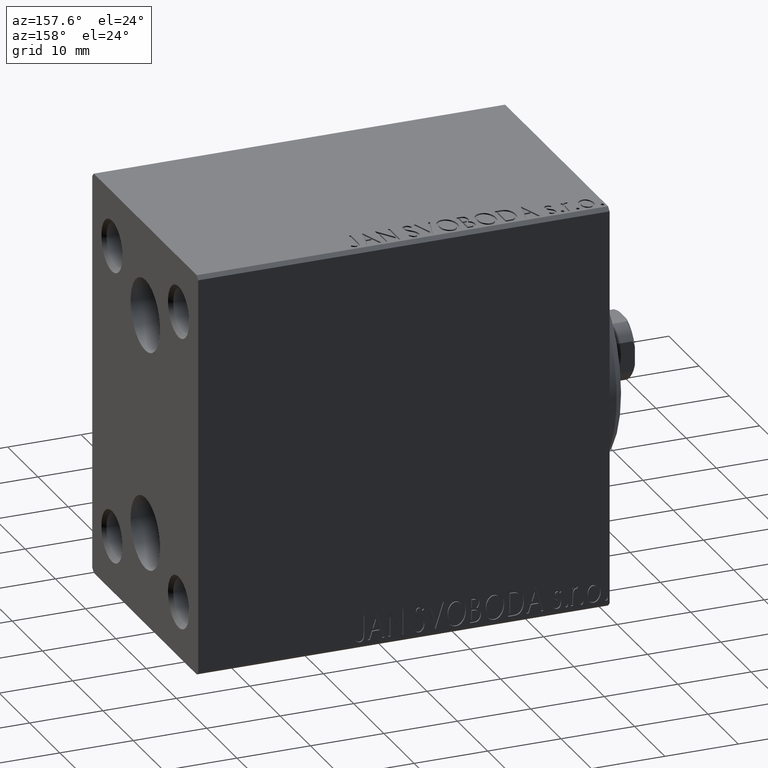
[diagram: clean part render]
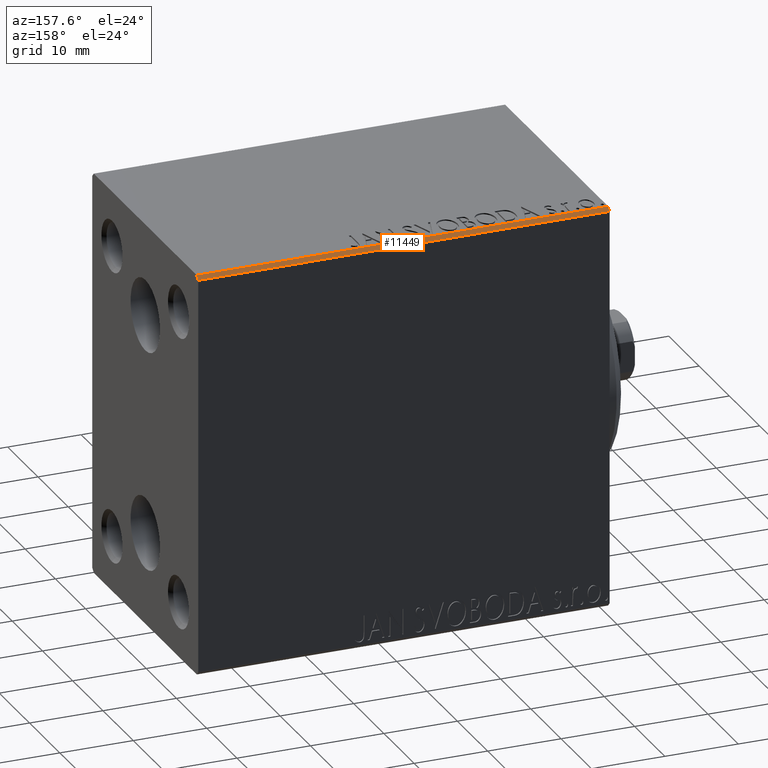
[diagram: same view with one face highlighted and labeled with its STEP entity id]
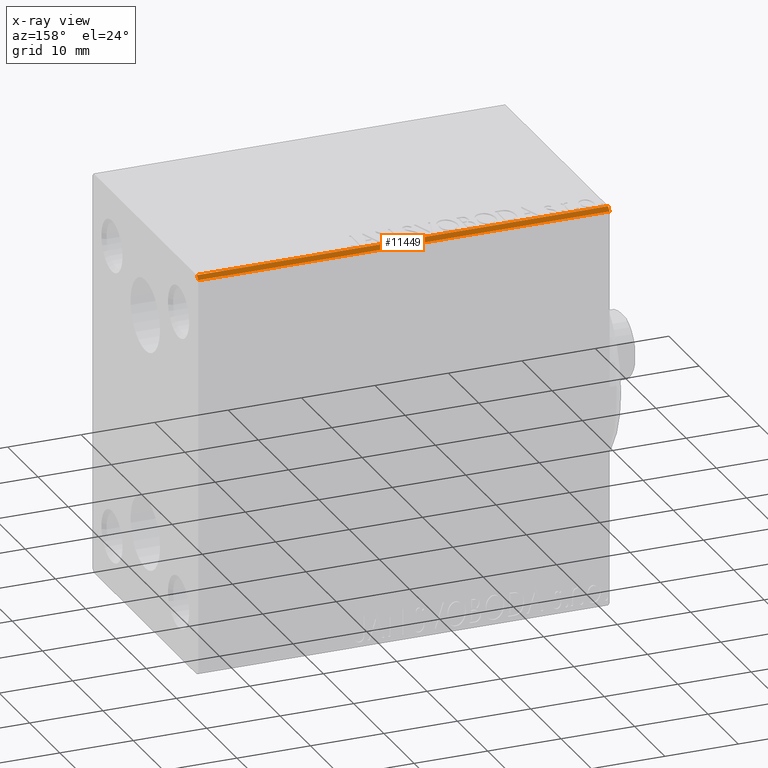
[diagram: x-ray of the same camera — body ghosted, the highlighted face saturated]
A machine part, auxiliary view. The second image highlights one B-rep face of the part: STEP entity #11449.
The next image is the same camera in x-ray: the body ghosted, the highlighted face saturated — about 0% of this face is hidden behind the body in this view.
In plain terms, the highlighted planar face has unit normal (-0, -0.7071, -0.7071).
Its self-contained STEP definition (entity closure, byte-faithful):
#205 = ORIENTED_EDGE ( 'NONE', *, *, #15595, .F. ) ;
#1251 = ORIENTED_EDGE ( 'NONE', *, *, #29673, .F. ) ;
#1459 = LINE ( 'NONE', #12160, #22978 ) ;
#1966 = DIRECTION ( 'NONE',  ( -1.000000000000000000, 0.000000000000000000, 0.000000000000000000 ) ) ;
#5876 = CARTESIAN_POINT ( 'NONE',  ( 0.000000000000000000, 17.50000000000000000, 26.99999999999998224 ) ) ;
#7194 = AXIS2_PLACEMENT_3D ( 'NONE', #42174, #22506, #1966 ) ;
#7780 = CARTESIAN_POINT ( 'NONE',  ( 56.00000000000000000, 17.50000000000000000, 26.99999999999998224 ) ) ;
#8079 = VERTEX_POINT ( 'NONE', #13334 ) ;
#11142 = VECTOR ( 'NONE', #17776, 1000.000000000000000 ) ;
#11449 = ADVANCED_FACE ( 'NONE', ( #42838 ), #18487, .F. ) ;
#12160 = CARTESIAN_POINT ( 'NONE',  ( 56.00000000000000000, 22.24999999999992895, 22.25000000000008171 ) ) ;
#12871 = LINE ( 'NONE', #13320, #44024 ) ;
#13320 = CARTESIAN_POINT ( 'NONE',  ( 0.000000000000000000, 16.99999999999998579, 27.49999999999999289 ) ) ;
#13334 = CARTESIAN_POINT ( 'NONE',  ( 0.000000000000000000, 16.99999999999998579, 27.49999999999999289 ) ) ;
#14203 = LINE ( 'NONE', #21153, #11142 ) ;
#14721 = CARTESIAN_POINT ( 'NONE',  ( 56.00000000000000000, 16.99999999999998579, 27.49999999999999289 ) ) ;
#15595 = EDGE_CURVE ( 'NONE', #31166, #24346, #1459, .T. ) ;
#16833 = EDGE_LOOP ( 'NONE', ( #205, #1251, #19676, #34394 ) ) ;
#17776 = DIRECTION ( 'NONE',  ( -1.000000000000000000, 0.000000000000000000, 0.000000000000000000 ) ) ;
#18208 = DIRECTION ( 'NONE',  ( -0.000000000000000000, -0.7071067811865500152, 0.7071067811865451302 ) ) ;
#18487 = PLANE ( 'NONE',  #7194 ) ;
#19676 = ORIENTED_EDGE ( 'NONE', *, *, #32594, .F. ) ;
#21153 = CARTESIAN_POINT ( 'NONE',  ( 56.00000000000000000, 16.99999999999998579, 27.49999999999999289 ) ) ;
#22506 = DIRECTION ( 'NONE',  ( -0.000000000000000000, -0.7071067811865451302, -0.7071067811865500152 ) ) ;
#22978 = VECTOR ( 'NONE', #18208, 1000.000000000000114 ) ;
#24346 = VERTEX_POINT ( 'NONE', #14721 ) ;
#29673 = EDGE_CURVE ( 'NONE', #41990, #31166, #39909, .T. ) ;
#31166 = VERTEX_POINT ( 'NONE', #7780 ) ;
#32594 = EDGE_CURVE ( 'NONE', #8079, #41990, #12871, .T. ) ;
#32987 = CARTESIAN_POINT ( 'NONE',  ( 56.00000000000000000, 17.50000000000000000, 26.99999999999998224 ) ) ;
#33792 = EDGE_CURVE ( 'NONE', #24346, #8079, #14203, .T. ) ;
#33933 = VECTOR ( 'NONE', #36988, 1000.000000000000000 ) ;
#34394 = ORIENTED_EDGE ( 'NONE', *, *, #33792, .F. ) ;
#36988 = DIRECTION ( 'NONE',  ( 1.000000000000000000, 0.000000000000000000, 0.000000000000000000 ) ) ;
#39909 = LINE ( 'NONE', #32987, #33933 ) ;
#41990 = VERTEX_POINT ( 'NONE', #5876 ) ;
#42174 = CARTESIAN_POINT ( 'NONE',  ( 56.00000000000000000, 16.99999999999998579, 27.49999999999999289 ) ) ;
#42838 = FACE_OUTER_BOUND ( 'NONE', #16833, .T. ) ;
#43716 = DIRECTION ( 'NONE',  ( -0.000000000000000000, 0.7071067811865500152, -0.7071067811865451302 ) ) ;
#44024 = VECTOR ( 'NONE', #43716, 1000.000000000000114 ) ;